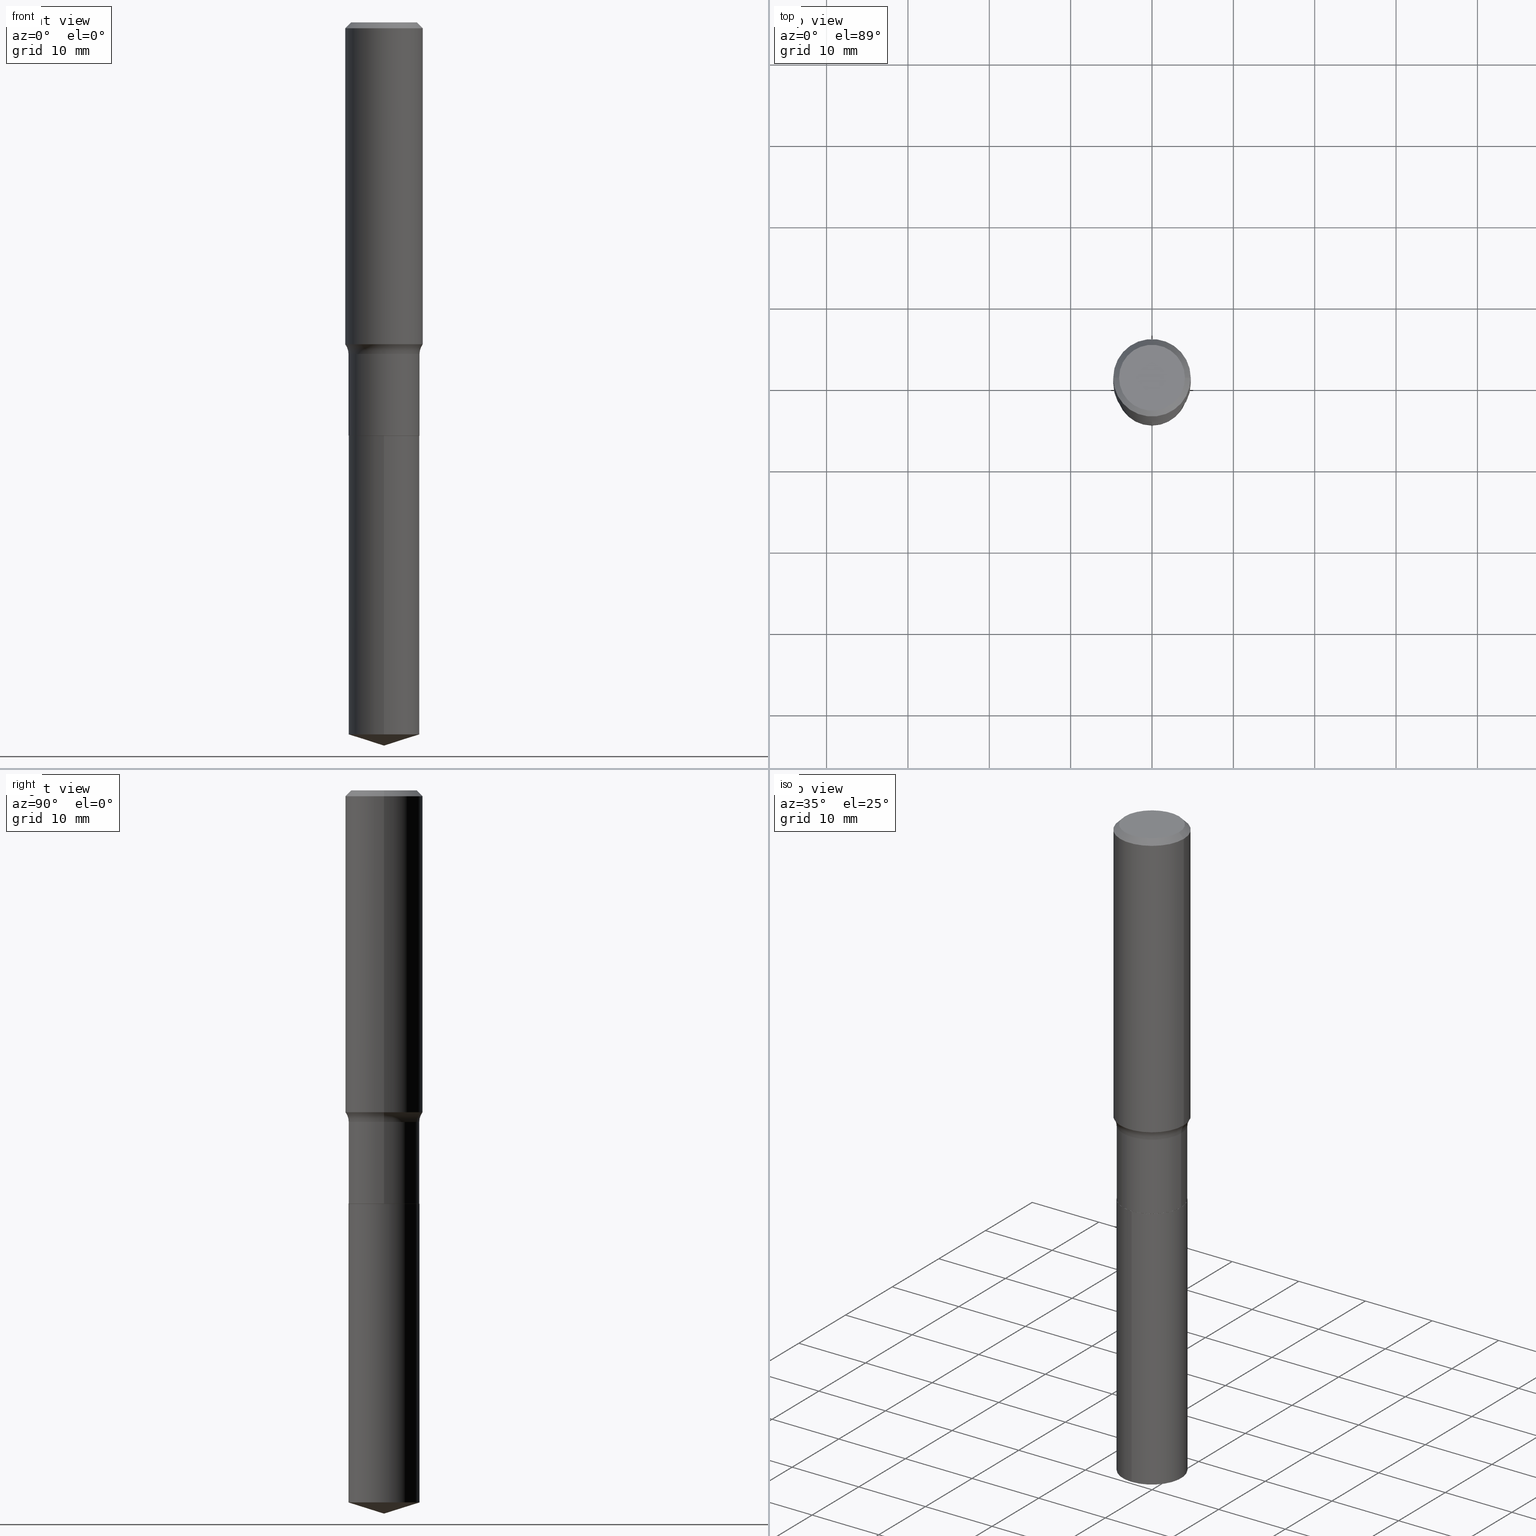
[diagram: canonical four-view strip — front | top / right | iso, engineering-drawing reading convention]
A machine part, canonical four-view strip (front | top / right | iso — engineering-drawing reading convention). The complete STEP part file that produces these views, byte-faithful:
ISO-10303-21;
HEADER;
FILE_DESCRIPTION (( 'STEP AP203' ),
    '1' );
FILE_NAME ('51352.STEP',
    '2024-04-19T12:50:57',
    ( '' ),
    ( '' ),
    'SwSTEP 2.0',
    'SolidWorks 2023',
    '' );
FILE_SCHEMA (( 'CONFIG_CONTROL_DESIGN' ));
ENDSEC;

DATA;
#1 = DIRECTION ( 'NONE',  ( 1.000000000000000000, -6.982962677686268288E-15, 0.000000000000000000 ) ) ;
#2 = AXIS2_PLACEMENT_3D ( 'NONE', #486, #218, #152 ) ;
#3 = LOCAL_TIME ( 8, 50, 57.00000000000000000, #386 ) ;
#4 = DIRECTION ( 'NONE',  ( 1.000000000000000000, -6.982962677686268288E-15, 0.000000000000000000 ) ) ;
#5 = EDGE_CURVE ( 'NONE', #373, #438, #266, .T. ) ;
#6 = VERTEX_POINT ( 'NONE', #184 ) ;
#7 = CARTESIAN_POINT ( 'NONE',  ( 0.1875000000000000555, -1.407503414721139514E-15, -0.02812500000000019498 ) ) ;
#8 = EDGE_CURVE ( 'NONE', #404, #19, #324, .T. ) ;
#9 = DIRECTION ( 'NONE',  ( -2.445371005331358683E-29, 3.491621395232234607E-15, 1.000000000000000000 ) ) ;
#10 = SECURITY_CLASSIFICATION ( '', '', #381 ) ;
#11 = EDGE_CURVE ( 'NONE', #125, #226, #289, .T. ) ;
#12 = CARTESIAN_POINT ( 'NONE',  ( 1.221422962771695622E-15, 0.1718999999999878681, -3.445800138191703610 ) ) ;
#13 = ORIENTED_EDGE ( 'NONE', *, *, #159, .T. ) ;
#14 = DIRECTION ( 'NONE',  ( 1.000000000000000000, -6.982962677686266711E-15, 4.876176775795935793E-29 ) ) ;
#15 = EDGE_LOOP ( 'NONE', ( #319, #32 ) ) ;
#16 = DIRECTION ( 'NONE',  ( -2.438088387897960049E-29, 3.491481338843145188E-15, 1.000000000000000000 ) ) ;
#17 = CIRCLE ( 'NONE', #132, 0.07800000000000002764 ) ;
#18 = AXIS2_PLACEMENT_3D ( 'NONE', #94, #238, #393 ) ;
#19 = VERTEX_POINT ( 'NONE', #367 ) ;
#20 = DIRECTION ( 'NONE',  ( 1.000000000000000000, -6.982962677686265133E-15, 0.000000000000000000 ) ) ;
#21 = PRODUCT_DEFINITION ( 'UNKNOWN', '', #371, #452 ) ;
#22 = ORIENTED_EDGE ( 'NONE', *, *, #185, .F. ) ;
#23 = PLANE ( 'NONE',  #38 ) ;
#24 = MANIFOLD_SOLID_BREP ( 'Body-Move/Copy2[2]', #276 ) ;
#25 = EDGE_LOOP ( 'NONE', ( #57, #435, #475 ) ) ;
#26 = EDGE_CURVE ( 'NONE', #317, #402, #83, .T. ) ;
#27 = CARTESIAN_POINT ( 'NONE',  ( 0.000000000000000000, 0.000000000000000000, 0.000000000000000000 ) ) ;
#28 = CIRCLE ( 'NONE', #37, 0.1713999999999999690 ) ;
#29 = EDGE_LOOP ( 'NONE', ( #140, #209, #326, #86 ) ) ;
#30 = CC_DESIGN_APPROVAL ( #141, ( #10 ) ) ;
#31 = DIRECTION ( 'NONE',  ( 0.000000000000000000, 0.000000000000000000, 1.000000000000000000 ) ) ;
#32 = ORIENTED_EDGE ( 'NONE', *, *, #364, .F. ) ;
#33 = DIRECTION ( 'NONE',  ( 2.438088387897960049E-29, -3.491481338843145188E-15, -1.000000000000000000 ) ) ;
#34 = CARTESIAN_POINT ( 'NONE',  ( 0.1875000000000001110, -1.309305502066175797E-15, 9.142831454617385217E-30 ) ) ;
#35 = DIRECTION ( 'NONE',  ( -2.445468806185136877E-29, 3.491481338843145188E-15, 1.000000000000000000 ) ) ;
#36 = ORIENTED_EDGE ( 'NONE', *, *, #213, .F. ) ;
#37 = AXIS2_PLACEMENT_3D ( 'NONE', #163, #416, #304 ) ;
#38 = AXIS2_PLACEMENT_3D ( 'NONE', #254, #33, #448 ) ;
#39 = DATE_AND_TIME ( #377, #471 ) ;
#40 = DIRECTION ( 'NONE',  ( 1.000000000000000000, -6.982962677686267499E-15, 4.876227444496879000E-29 ) ) ;
#41 = FACE_OUTER_BOUND ( 'NONE', #135, .T. ) ;
#42 = PERSON_AND_ORGANIZATION ( #166, #252 ) ;
#43 = DIRECTION ( 'NONE',  ( 1.000000000000000000, -6.982962677686265922E-15, 0.000000000000000000 ) ) ;
#44 = CIRCLE ( 'NONE', #179, 0.1718999999999999695 ) ;
#45 = ORIENTED_EDGE ( 'NONE', *, *, #332, .T. ) ;
#46 = CALENDAR_DATE ( 2024, 19, 4 ) ;
#47 =( GEOMETRIC_REPRESENTATION_CONTEXT ( 3 ) GLOBAL_UNCERTAINTY_ASSIGNED_CONTEXT ( ( #312 ) ) GLOBAL_UNIT_ASSIGNED_CONTEXT ( ( #483, #403, #60 ) ) REPRESENTATION_CONTEXT ( 'NONE', 'WORKASPACE' ) );
#48 = CARTESIAN_POINT ( 'NONE',  ( 1.221422962771660912E-15, 0.1718999999999930028, -2.000000000000000444 ) ) ;
#49 = EDGE_LOOP ( 'NONE', ( #59, #45, #369, #484 ) ) ;
#50 = CYLINDRICAL_SURFACE ( 'NONE', #134, 0.1718999999999999695 ) ;
#51 = MANIFOLD_SOLID_BREP ( 'Body-Move/Copy2[1]', #258 ) ;
#52 = CC_DESIGN_PERSON_AND_ORGANIZATION_ASSIGNMENT ( #42, #488, ( #371 ) ) ;
#53 = CIRCLE ( 'NONE', #327, 0.1718999999999999695 ) ;
#54 = CARTESIAN_POINT ( 'NONE',  ( 8.559193152467037530E-29, -1.222011465775646424E-14, -3.500000000000000000 ) ) ;
#55 = CIRCLE ( 'NONE', #259, 0.1718999999999999695 ) ;
#56 = DIRECTION ( 'NONE',  ( -2.445468806185136597E-29, 3.491481338843145583E-15, 1.000000000000000000 ) ) ;
#57 = ORIENTED_EDGE ( 'NONE', *, *, #398, .F. ) ;
#58 = CARTESIAN_POINT ( 'NONE',  ( -0.1718999999999999417, 1.221422962771611806E-15, -8.455649420148180377E-30 ) ) ;
#59 = ORIENTED_EDGE ( 'NONE', *, *, #415, .T. ) ;
#60 =( NAMED_UNIT ( * ) SI_UNIT ( $, .STERADIAN. ) SOLID_ANGLE_UNIT ( ) );
#61 = ADVANCED_FACE ( 'NONE', ( #255 ), #111, .F. ) ;
#62 = VECTOR ( 'NONE', #73, 39.37007874015748143 ) ;
#63 = ORIENTED_EDGE ( 'NONE', *, *, #11, .T. ) ;
#64 = ADVANCED_FACE ( 'NONE', ( #253 ), #235, .T. ) ;
#65 = ORIENTED_EDGE ( 'NONE', *, *, #462, .T. ) ;
#66 = CARTESIAN_POINT ( 'NONE',  ( 3.809551306275204271E-29, -5.439029629649850300E-15, -1.557799999999999407 ) ) ;
#67 = DIRECTION ( 'NONE',  ( 1.000000000000000000, -6.982962677686265922E-15, 0.000000000000000000 ) ) ;
#68 = CARTESIAN_POINT ( 'NONE',  ( 3.923999246404669862E-29, -5.602430956307710923E-15, -1.604599999999999804 ) ) ;
#69 = ADVANCED_FACE ( 'NONE', ( #186 ), #333, .T. ) ;
#70 = DIRECTION ( 'NONE',  ( -2.445468806185136597E-29, 3.491481338843145583E-15, 1.000000000000000000 ) ) ;
#71 = CARTESIAN_POINT ( 'NONE',  ( 4.890937612370272633E-29, -6.982962677686290376E-15, -1.999999999999999778 ) ) ;
#72 = AXIS2_PLACEMENT_3D ( 'NONE', #436, #351, #14 ) ;
#73 = DIRECTION ( 'NONE',  ( -0.7071067811865457964, 2.468850131082238917E-15, -0.7071067811865492381 ) ) ;
#74 = ORIENTED_EDGE ( 'NONE', *, *, #8, .F. ) ;
#75 = APPROVAL_DATE_TIME ( #233, #251 ) ;
#76 = DIMENSIONAL_EXPONENTS ( 1.000000000000000000, 0.000000000000000000, 0.000000000000000000, 0.000000000000000000, 0.000000000000000000, 0.000000000000000000, 0.000000000000000000 ) ;
#77 = EDGE_CURVE ( 'NONE', #200, #281, #290, .T. ) ;
#78 = DIRECTION ( 'NONE',  ( -2.445468806185136597E-29, 3.491481338843145583E-15, 1.000000000000000000 ) ) ;
#79 = ORIENTED_EDGE ( 'NONE', *, *, #213, .T. ) ;
#80 = ADVANCED_FACE ( 'NONE', ( #117 ), #463, .T. ) ;
#81 = DIRECTION ( 'NONE',  ( 1.000000000000000000, -6.982962677686265133E-15, 0.000000000000000000 ) ) ;
#82 = AXIS2_PLACEMENT_3D ( 'NONE', #139, #70, #67 ) ;
#83 = CIRCLE ( 'NONE', #441, 0.1718999999999999695 ) ;
#84 = AXIS2_PLACEMENT_3D ( 'NONE', #392, #56, #279 ) ;
#85 = CARTESIAN_POINT ( 'NONE',  ( 0.2498999999999999000, -7.347473329461508210E-15, -1.604599999999999804 ) ) ;
#86 = ORIENTED_EDGE ( 'NONE', *, *, #11, .F. ) ;
#87 = DATE_TIME_ROLE ( 'classification_date' ) ;
#88 = CARTESIAN_POINT ( 'NONE',  ( 0.1718999999999999417, -1.200371284294268847E-15, 8.382147877593211677E-30 ) ) ;
#89 = VECTOR ( 'NONE', #329, 39.37007874015748143 ) ;
#90 = EDGE_LOOP ( 'NONE', ( #127, #150 ) ) ;
#91 = AXIS2_PLACEMENT_3D ( 'NONE', #138, #285, #288 ) ;
#92 = PRODUCT_DEFINITION_SHAPE ( 'NONE', 'NONE',  #21 ) ;
#93 = CARTESIAN_POINT ( 'NONE',  ( 4.890937612370272633E-29, -6.982962677686290376E-15, -1.999999999999999778 ) ) ;
#94 = CARTESIAN_POINT ( 'NONE',  ( 3.923999246404669862E-29, -5.602430956307710923E-15, -1.604599999999999804 ) ) ;
#95 = EDGE_CURVE ( 'NONE', #114, #226, #397, .T. ) ;
#96 = CARTESIAN_POINT ( 'NONE',  ( 0.1713999999999999690, -8.179842480641715822E-15, -1.999999999999999778 ) ) ;
#97 = DIRECTION ( 'NONE',  ( -2.445468806185136877E-29, 3.491481338843145188E-15, 1.000000000000000000 ) ) ;
#98 = CIRCLE ( 'NONE', #208, 0.07800000000000002764 ) ;
#99 = ORIENTED_EDGE ( 'NONE', *, *, #195, .T. ) ;
#100 = ORIENTED_EDGE ( 'NONE', *, *, #419, .F. ) ;
#101 = ADVANCED_FACE ( 'NONE', ( #198 ), #105, .T. ) ;
#102 = DIRECTION ( 'NONE',  ( -2.445468806185136597E-29, 3.491481338843145583E-15, 1.000000000000000000 ) ) ;
#103 = ORIENTED_EDGE ( 'NONE', *, *, #5, .T. ) ;
#104 = PERSON_AND_ORGANIZATION ( #166, #252 ) ;
#105 = CONICAL_SURFACE ( 'NONE', #429, 0.1713999999999999690, 0.7853981633975507526 ) ;
#106 = CC_DESIGN_APPROVAL ( #468, ( #21 ) ) ;
#107 = ORIENTED_EDGE ( 'NONE', *, *, #8, .T. ) ;
#108 = FACE_OUTER_BOUND ( 'NONE', #202, .T. ) ;
#109 = ORIENTED_EDGE ( 'NONE', *, *, #228, .T. ) ;
#110 = DIRECTION ( 'NONE',  ( -2.445468806185136597E-29, 3.491481338843145583E-15, 1.000000000000000000 ) ) ;
#111 = PLANE ( 'NONE',  #143 ) ;
#112 = DIRECTION ( 'NONE',  ( 1.000000000000000000, -6.982962677686265133E-15, 0.000000000000000000 ) ) ;
#113 = AXIS2_PLACEMENT_3D ( 'NONE', #314, #455, #418 ) ;
#114 = VERTEX_POINT ( 'NONE', #395 ) ;
#115 = APPROVAL_ROLE ( '' ) ;
#116 = CARTESIAN_POINT ( 'NONE',  ( 0.1875000000000002498, -6.748335131716026097E-15, -1.557799999999999407 ) ) ;
#117 = FACE_OUTER_BOUND ( 'NONE', #461, .T. ) ;
#118 = EDGE_CURVE ( 'NONE', #402, #317, #44, .T. ) ;
#119 = APPROVAL_STATUS ( 'not_yet_approved' ) ;
#120 = CARTESIAN_POINT ( 'NONE',  ( -7.955031918821655674E-47, 1.135767727816384611E-32, 3.252968060235159768E-18 ) ) ;
#121 = SHAPE_DEFINITION_REPRESENTATION ( #92, #188 ) ;
#122 = CONICAL_SURFACE ( 'NONE', #190, 0.1713999999999999690, 0.7853981633975507526 ) ;
#123 = CONICAL_SURFACE ( 'NONE', #91, 0.1875000000000000555, 0.7853981633974458365 ) ;
#124 = APPROVAL_STATUS ( 'not_yet_approved' ) ;
#125 = VERTEX_POINT ( 'NONE', #116 ) ;
#126 = CYLINDRICAL_SURFACE ( 'NONE', #113, 0.1718999999999999417 ) ;
#127 = ORIENTED_EDGE ( 'NONE', *, *, #322, .T. ) ;
#128 = AXIS2_PLACEMENT_3D ( 'NONE', #66, #102, #20 ) ;
#129 = APPLICATION_CONTEXT ( 'configuration controlled 3d designs of mechanical parts and assemblies' ) ;
#130 = FACE_OUTER_BOUND ( 'NONE', #15, .T. ) ;
#131 = ORIENTED_EDGE ( 'NONE', *, *, #410, .F. ) ;
#132 = AXIS2_PLACEMENT_3D ( 'NONE', #85, #387, #1 ) ;
#133 = FACE_OUTER_BOUND ( 'NONE', #286, .T. ) ;
#134 = AXIS2_PLACEMENT_3D ( 'NONE', #318, #470, #283 ) ;
#135 = EDGE_LOOP ( 'NONE', ( #355, #107, #169, #469 ) ) ;
#136 = CARTESIAN_POINT ( 'NONE',  ( -0.1593749999999999889, 1.162008633083729827E-15, 3.252968060227205293E-18 ) ) ;
#137 = ORIENTED_EDGE ( 'NONE', *, *, #287, .T. ) ;
#138 = CARTESIAN_POINT ( 'NONE',  ( 6.877881017395745374E-31, -9.819791265496414867E-17, -0.02812500000000019498 ) ) ;
#139 = CARTESIAN_POINT ( 'NONE',  ( 6.877881017395745374E-31, -9.819791265496414867E-17, -0.02812500000000019498 ) ) ;
#140 = ORIENTED_EDGE ( 'NONE', *, *, #476, .T. ) ;
#141 = APPROVAL ( #124, 'UNSPECIFIED' ) ;
#142 = LINE ( 'NONE', #413, #362 ) ;
#143 = AXIS2_PLACEMENT_3D ( 'NONE', #71, #440, #445 ) ;
#144 = VECTOR ( 'NONE', #97, 39.37007874015748143 ) ;
#145 = LOCAL_TIME ( 8, 50, 57.00000000000000000, #309 ) ;
#146 = DIRECTION ( 'NONE',  ( -2.445371005331358683E-29, 3.491621395232234607E-15, 1.000000000000000000 ) ) ;
#147 = DIRECTION ( 'NONE',  ( -6.982962677686266711E-15, -1.000000000000000000, 3.178415350394722068E-15 ) ) ;
#148 = VERTEX_POINT ( 'NONE', #214 ) ;
#149 = DIRECTION ( 'NONE',  ( 1.000000000000000000, 0.000000000000000000, 0.000000000000000000 ) ) ;
#150 = ORIENTED_EDGE ( 'NONE', *, *, #410, .T. ) ;
#151 = AXIS2_PLACEMENT_3D ( 'NONE', #160, #273, #268 ) ;
#152 = DIRECTION ( 'NONE',  ( -6.982962677686266711E-15, -1.000000000000000000, 3.178415350394722068E-15 ) ) ;
#153 = PRODUCT_RELATED_PRODUCT_CATEGORY ( 'detail', '', ( #349 ) ) ;
#154 = COORDINATED_UNIVERSAL_TIME_OFFSET ( 5, 0, .BEHIND. ) ;
#155 = CARTESIAN_POINT ( 'NONE',  ( 0.1875000000000000555, -1.384541287237126871E-15, -0.02812500000000019498 ) ) ;
#156 = DATE_AND_TIME ( #46, #199 ) ;
#157 = FACE_OUTER_BOUND ( 'NONE', #293, .T. ) ;
#158 = DATE_AND_TIME ( #192, #382 ) ;
#159 = EDGE_CURVE ( 'NONE', #226, #114, #297, .T. ) ;
#160 = CARTESIAN_POINT ( 'NONE',  ( 3.923999246404669862E-29, -5.602430956307710923E-15, -1.604599999999999804 ) ) ;
#161 = AXIS2_PLACEMENT_3D ( 'NONE', #489, #193, #491 ) ;
#162 = CARTESIAN_POINT ( 'NONE',  ( 8.558798518659754270E-29, -1.222067488331282034E-14, -3.500000000000000000 ) ) ;
#163 = CARTESIAN_POINT ( 'NONE',  ( 4.890937612370272633E-29, -6.982962677686290376E-15, -1.999999999999999778 ) ) ;
#164 = EDGE_CURVE ( 'NONE', #373, #226, #221, .T. ) ;
#165 = LINE ( 'NONE', #54, #421 ) ;
#166 = PERSON ( 'UNSPECIFIED', 'UNSPECIFIED', 'UNSPECIFIED', ('UNSPECIFIED'), ('UNSPECIFIED'), ('UNSPECIFIED') ) ;
#167 = CC_DESIGN_PERSON_AND_ORGANIZATION_ASSIGNMENT ( #385, #492, ( #371 ) ) ;
#168 = AXIS2_PLACEMENT_3D ( 'NONE', #372, #31, #149 ) ;
#169 = ORIENTED_EDGE ( 'NONE', *, *, #415, .F. ) ;
#170 = PLANE ( 'NONE',  #346 ) ;
#171 = ORIENTED_EDGE ( 'NONE', *, *, #95, .F. ) ;
#172 = CIRCLE ( 'NONE', #212, 0.1718999999999999695 ) ;
#173 = CARTESIAN_POINT ( 'NONE',  ( 4.890937612370272633E-29, -6.982962677686290376E-15, -1.999999999999999778 ) ) ;
#174 = ORIENTED_EDGE ( 'NONE', *, *, #311, .F. ) ;
#175 = ORIENTED_EDGE ( 'NONE', *, *, #176, .T. ) ;
#176 = EDGE_CURVE ( 'NONE', #125, #200, #17, .T. ) ;
#177 = APPLICATION_PROTOCOL_DEFINITION ( 'international standard', 'config_control_design', 1994, #129 ) ;
#178 = EDGE_LOOP ( 'NONE', ( #358, #360, #391, #131 ) ) ;
#179 = AXIS2_PLACEMENT_3D ( 'NONE', #444, #406, #453 ) ;
#180 = VECTOR ( 'NONE', #9, 39.37007874015748143 ) ;
#181 = DIRECTION ( 'NONE',  ( -6.982962677686266711E-15, -1.000000000000000000, 3.178415350394722068E-15 ) ) ;
#182 = MECHANICAL_CONTEXT ( 'NONE', #376, 'mechanical' ) ;
#183 = EDGE_CURVE ( 'NONE', #402, #473, #423, .T. ) ;
#184 = CARTESIAN_POINT ( 'NONE',  ( -1.200371284294219937E-15, -0.1719000000000069361, -1.999999999999999112 ) ) ;
#185 = EDGE_CURVE ( 'NONE', #438, #373, #320, .T. ) ;
#186 = FACE_OUTER_BOUND ( 'NONE', #417, .T. ) ;
#187 = APPROVAL_DATE_TIME ( #39, #468 ) ;
#188 = ADVANCED_BREP_SHAPE_REPRESENTATION ( '51352', ( #51, #24, #168 ), #47 ) ;
#189 = FACE_OUTER_BOUND ( 'NONE', #25, .T. ) ;
#190 = AXIS2_PLACEMENT_3D ( 'NONE', #460, #426, #81 ) ;
#191 = CIRCLE ( 'NONE', #292, 0.1875000000000002220 ) ;
#192 = CALENDAR_DATE ( 2024, 19, 4 ) ;
#193 = DIRECTION ( 'NONE',  ( -2.445371005331358683E-29, 3.491621395232234607E-15, 1.000000000000000000 ) ) ;
#194 = CARTESIAN_POINT ( 'NONE',  ( 6.877881017395745374E-31, -9.819791265496414867E-17, -0.02812500000000019498 ) ) ;
#195 = EDGE_CURVE ( 'NONE', #365, #148, #345, .T. ) ;
#196 = CARTESIAN_POINT ( 'NONE',  ( 0.000000000000000000, 0.000000000000000000, 0.000000000000000000 ) ) ;
#197 = DIRECTION ( 'NONE',  ( -2.445371005331358683E-29, 3.491621395232234607E-15, 1.000000000000000000 ) ) ;
#198 = FACE_OUTER_BOUND ( 'NONE', #449, .T. ) ;
#199 = LOCAL_TIME ( 8, 50, 57.00000000000000000, #458 ) ;
#200 = VERTEX_POINT ( 'NONE', #265 ) ;
#201 = CARTESIAN_POINT ( 'NONE',  ( 4.889714877967179832E-29, -6.981216937016868873E-15, -1.999499999999999833 ) ) ;
#202 = EDGE_LOOP ( 'NONE', ( #211, #103 ) ) ;
#203 = LINE ( 'NONE', #350, #180 ) ;
#204 = ADVANCED_FACE ( 'NONE', ( #310 ), #126, .T. ) ;
#205 = CARTESIAN_POINT ( 'NONE',  ( 4.890937612370272633E-29, -6.982962677686290376E-15, -1.999999999999999778 ) ) ;
#206 = CYLINDRICAL_SURFACE ( 'NONE', #72, 0.1875000000000001110 ) ;
#207 = VECTOR ( 'NONE', #197, 39.37007874015748143 ) ;
#208 = AXIS2_PLACEMENT_3D ( 'NONE', #210, #359, #243 ) ;
#209 = ORIENTED_EDGE ( 'NONE', *, *, #430, .T. ) ;
#210 = CARTESIAN_POINT ( 'NONE',  ( -0.2498999999999999000, -3.826784659643221269E-15, -1.604599999999999804 ) ) ;
#211 = ORIENTED_EDGE ( 'NONE', *, *, #185, .T. ) ;
#212 = AXIS2_PLACEMENT_3D ( 'NONE', #93, #432, #466 ) ;
#213 = EDGE_CURVE ( 'NONE', #19, #148, #53, .T. ) ;
#214 = CARTESIAN_POINT ( 'NONE',  ( 0.1718999999999999695, -8.181588221311138114E-15, -1.999499999999999833 ) ) ;
#215 = ORIENTED_EDGE ( 'NONE', *, *, #164, .T. ) ;
#216 = PERSON_AND_ORGANIZATION_ROLE ( 'design_owner' ) ;
#217 = CC_DESIGN_DATE_AND_TIME_ASSIGNMENT ( #156, #87, ( #10 ) ) ;
#218 = DIRECTION ( 'NONE',  ( -2.445371005331358683E-29, 3.491621395232234607E-15, 1.000000000000000000 ) ) ;
#219 = DIRECTION ( 'NONE',  ( -2.445468806185136597E-29, 3.491481338843145583E-15, 1.000000000000000000 ) ) ;
#220 = AXIS2_PLACEMENT_3D ( 'NONE', #240, #278, #428 ) ;
#221 = LINE ( 'NONE', #155, #451 ) ;
#222 = DIRECTION ( 'NONE',  ( -2.445468806185136597E-29, 3.491481338843145583E-15, 1.000000000000000000 ) ) ;
#223 = DIRECTION ( 'NONE',  ( -2.445468806185136597E-29, 3.491481338843145583E-15, 1.000000000000000000 ) ) ;
#224 = DIRECTION ( 'NONE',  ( 1.000000000000000000, -6.982962677686267499E-15, 4.876227444496879000E-29 ) ) ;
#225 = CARTESIAN_POINT ( 'NONE',  ( -0.1718999999999999417, -5.070400983890677303E-15, -1.604599999999999804 ) ) ;
#226 = VERTEX_POINT ( 'NONE', #7 ) ;
#227 = DIRECTION ( 'NONE',  ( 1.000000000000000000, -6.982962677686266711E-15, 4.876176775795935793E-29 ) ) ;
#228 = EDGE_CURVE ( 'NONE', #281, #200, #335, .T. ) ;
#229 = CC_DESIGN_APPROVAL ( #251, ( #371 ) ) ;
#230 = DIRECTION ( 'NONE',  ( 0.7071067811866199593, -2.468850131083015945E-15, 0.7071067811864750752 ) ) ;
#231 = APPROVAL_STATUS ( 'not_yet_approved' ) ;
#232 = VERTEX_POINT ( 'NONE', #162 ) ;
#233 = DATE_AND_TIME ( #343, #3 ) ;
#234 = DIRECTION ( 'NONE',  ( 0.7071067811865457964, -7.319954787623249734E-15, -0.7071067811865492381 ) ) ;
#235 = CONICAL_SURFACE ( 'NONE', #434, 124.8659371009145787, 1.265363707695890572 ) ;
#236 = ORIENTED_EDGE ( 'NONE', *, *, #322, .F. ) ;
#237 = CC_DESIGN_DATE_AND_TIME_ASSIGNMENT ( #158, #485, ( #21 ) ) ;
#238 = DIRECTION ( 'NONE',  ( -2.445468806185136597E-29, 3.491481338843145583E-15, 1.000000000000000000 ) ) ;
#239 = DIRECTION ( 'NONE',  ( 1.000000000000000000, -6.982962677686265133E-15, 0.000000000000000000 ) ) ;
#240 = CARTESIAN_POINT ( 'NONE',  ( 3.923999246404669862E-29, -5.602430956307710923E-15, -1.604599999999999804 ) ) ;
#241 = CC_DESIGN_PERSON_AND_ORGANIZATION_ASSIGNMENT ( #104, #216, ( #349 ) ) ;
#242 = AXIS2_PLACEMENT_3D ( 'NONE', #196, #340, #227 ) ;
#243 = DIRECTION ( 'NONE',  ( -1.000000000000000000, 7.105427357601001859E-15, 0.000000000000000000 ) ) ;
#244 = ORIENTED_EDGE ( 'NONE', *, *, #364, .T. ) ;
#245 = ORIENTED_EDGE ( 'NONE', *, *, #183, .T. ) ;
#246 = ADVANCED_FACE ( 'NONE', ( #41 ), #122, .T. ) ;
#247 = LENGTH_MEASURE_WITH_UNIT ( LENGTH_MEASURE( 0.02539999999999999897 ), #368 );
#248 = ORIENTED_EDGE ( 'NONE', *, *, #26, .F. ) ;
#249 = AXIS2_PLACEMENT_3D ( 'NONE', #194, #341, #43 ) ;
#250 = CARTESIAN_POINT ( 'NONE',  ( 4.889714877967179832E-29, -6.981216937016868873E-15, -1.999499999999999833 ) ) ;
#251 = APPROVAL ( #119, 'UNSPECIFIED' ) ;
#252 = ORGANIZATION ( 'UNSPECIFIED', 'UNSPECIFIED', '' ) ;
#253 = FACE_OUTER_BOUND ( 'NONE', #347, .T. ) ;
#254 = CARTESIAN_POINT ( 'NONE',  ( -3.977515959410827837E-47, 5.678838639081923055E-33, 1.626484030117579884E-18 ) ) ;
#255 = FACE_OUTER_BOUND ( 'NONE', #90, .T. ) ;
#256 = CARTESIAN_POINT ( 'NONE',  ( -7.955031918821655674E-47, 1.135767727816384611E-32, 3.252968060235159768E-18 ) ) ;
#257 = CARTESIAN_POINT ( 'NONE',  ( 1.221422962771696214E-15, 0.1718999999999930028, -2.000000000000000444 ) ) ;
#258 = CLOSED_SHELL ( 'NONE', ( #69, #64, #300, #378, #61 ) ) ;
#259 = AXIS2_PLACEMENT_3D ( 'NONE', #467, #408, #147 ) ;
#260 = ORIENTED_EDGE ( 'NONE', *, *, #462, .F. ) ;
#261 = APPROVAL_ROLE ( '' ) ;
#262 = CYLINDRICAL_SURFACE ( 'NONE', #242, 0.1875000000000001110 ) ;
#263 = ORIENTED_EDGE ( 'NONE', *, *, #5, .F. ) ;
#264 = ADVANCED_FACE ( 'NONE', ( #306 ), #262, .T. ) ;
#265 = CARTESIAN_POINT ( 'NONE',  ( 0.1718999999999999417, -6.802802240601980164E-15, -1.604599999999999804 ) ) ;
#266 = CIRCLE ( 'NONE', #361, 0.1593749999999999889 ) ;
#267 = DATE_AND_TIME ( #331, #145 ) ;
#268 = DIRECTION ( 'NONE',  ( 1.000000000000000000, -6.982962677686269077E-15, 0.000000000000000000 ) ) ;
#269 = DIRECTION ( 'NONE',  ( -1.000000000000000000, 6.982962677686265922E-15, 0.000000000000000000 ) ) ;
#270 = EDGE_CURVE ( 'NONE', #365, #404, #28, .T. ) ;
#271 = ORIENTED_EDGE ( 'NONE', *, *, #95, .T. ) ;
#272 = PERSON_AND_ORGANIZATION ( #166, #252 ) ;
#273 = DIRECTION ( 'NONE',  ( -2.445468806185136597E-29, 3.491481338843145583E-15, 1.000000000000000000 ) ) ;
#274 = ORIENTED_EDGE ( 'NONE', *, *, #384, .F. ) ;
#275 = CARTESIAN_POINT ( 'NONE',  ( -1.200371284294184241E-15, -0.1719000000000119599, -3.445800138191702278 ) ) ;
#276 = CLOSED_SHELL ( 'NONE', ( #246, #450, #264, #338, #204, #439, #307, #342, #80, #465, #356, #101 ) ) ;
#277 = AXIS2_PLACEMENT_3D ( 'NONE', #27, #223, #443 ) ;
#278 = DIRECTION ( 'NONE',  ( -2.445468806185136597E-29, 3.491481338843145583E-15, 1.000000000000000000 ) ) ;
#279 = DIRECTION ( 'NONE',  ( 1.000000000000000000, -6.982962677686265133E-15, 0.000000000000000000 ) ) ;
#280 = CARTESIAN_POINT ( 'NONE',  ( 8.558798518659754270E-29, -1.222067488331281876E-14, -3.500000000000000000 ) ) ;
#281 = VERTEX_POINT ( 'NONE', #225 ) ;
#282 = VECTOR ( 'NONE', #401, 39.37007874015748143 ) ;
#283 = DIRECTION ( 'NONE',  ( -6.982962677686266711E-15, -1.000000000000000000, 3.178415350394722068E-15 ) ) ;
#284 = ORIENTED_EDGE ( 'NONE', *, *, #344, .F. ) ;
#285 = DIRECTION ( 'NONE',  ( 2.445468806185136597E-29, -3.491481338843145583E-15, -1.000000000000000000 ) ) ;
#286 = EDGE_LOOP ( 'NONE', ( #260, #424, #109, #472 ) ) ;
#287 = EDGE_CURVE ( 'NONE', #148, #200, #379, .T. ) ;
#288 = DIRECTION ( 'NONE',  ( -1.000000000000000000, 6.982962677686265922E-15, 0.000000000000000000 ) ) ;
#289 = LINE ( 'NONE', #34, #89 ) ;
#290 = CIRCLE ( 'NONE', #352, 0.1718999999999999417 ) ;
#291 = FACE_OUTER_BOUND ( 'NONE', #427, .T. ) ;
#292 = AXIS2_PLACEMENT_3D ( 'NONE', #374, #110, #112 ) ;
#293 = EDGE_LOOP ( 'NONE', ( #284, #400, #175, #414 ) ) ;
#294 = CARTESIAN_POINT ( 'NONE',  ( -0.1875000000000000555, 1.211107589411211094E-15, -0.02812500000000019498 ) ) ;
#295 = VERTEX_POINT ( 'NONE', #383 ) ;
#296 = ORIENTED_EDGE ( 'NONE', *, *, #26, .T. ) ;
#297 = CIRCLE ( 'NONE', #82, 0.1875000000000000555 ) ;
#298 = CIRCLE ( 'NONE', #84, 0.1713999999999999690 ) ;
#299 = ORIENTED_EDGE ( 'NONE', *, *, #164, .F. ) ;
#300 = ADVANCED_FACE ( 'NONE', ( #189 ), #370, .T. ) ;
#301 = DIRECTION ( 'NONE',  ( -2.445468806185136597E-29, 3.491481338843145583E-15, 1.000000000000000000 ) ) ;
#302 = CC_DESIGN_PERSON_AND_ORGANIZATION_ASSIGNMENT ( #456, #389, ( #10 ) ) ;
#303 = APPROVAL_DATE_TIME ( #267, #141 ) ;
#304 = DIRECTION ( 'NONE',  ( 1.000000000000000000, -6.982962677686265133E-15, 0.000000000000000000 ) ) ;
#305 = PERSON_AND_ORGANIZATION ( #166, #252 ) ;
#306 = FACE_OUTER_BOUND ( 'NONE', #29, .T. ) ;
#307 = ADVANCED_FACE ( 'NONE', ( #157 ), #390, .F. ) ;
#308 = VECTOR ( 'NONE', #35, 39.37007874015748143 ) ;
#309 = COORDINATED_UNIVERSAL_TIME_OFFSET ( 5, 0, .BEHIND. ) ;
#310 = FACE_OUTER_BOUND ( 'NONE', #49, .T. ) ;
#311 = EDGE_CURVE ( 'NONE', #232, #317, #431, .T. ) ;
#312 = UNCERTAINTY_MEASURE_WITH_UNIT (LENGTH_MEASURE( 1.000000000000000082E-05 ), #483, 'distance_accuracy_value', 'NONE');
#313 = ORIENTED_EDGE ( 'NONE', *, *, #398, .T. ) ;
#314 = CARTESIAN_POINT ( 'NONE',  ( 0.000000000000000000, 0.000000000000000000, 0.000000000000000000 ) ) ;
#315 = APPROVAL_PERSON_ORGANIZATION ( #325, #468, #115 ) ;
#316 = CARTESIAN_POINT ( 'NONE',  ( -0.1713999999999999690, -5.762443201419367479E-15, -1.999999999999999778 ) ) ;
#317 = VERTEX_POINT ( 'NONE', #275 ) ;
#318 = CARTESIAN_POINT ( 'NONE',  ( 4.890937612370272633E-29, -6.982962677686290376E-15, -1.999999999999999778 ) ) ;
#319 = ORIENTED_EDGE ( 'NONE', *, *, #270, .F. ) ;
#320 = CIRCLE ( 'NONE', #478, 0.1593749999999999889 ) ;
#321 = DIRECTION ( 'NONE',  ( 1.000000000000000000, -6.982962677686265922E-15, 4.876176775795935793E-29 ) ) ;
#322 = EDGE_CURVE ( 'NONE', #6, #473, #172, .T. ) ;
#323 = EDGE_LOOP ( 'NONE', ( #459, #65, #63, #171 ) ) ;
#324 = LINE ( 'NONE', #375, #457 ) ;
#325 = PERSON_AND_ORGANIZATION ( #166, #252 ) ;
#326 = ORIENTED_EDGE ( 'NONE', *, *, #159, .F. ) ;
#327 = AXIS2_PLACEMENT_3D ( 'NONE', #201, #301, #4 ) ;
#328 = CIRCLE ( 'NONE', #336, 0.1718999999999999695 ) ;
#329 = DIRECTION ( 'NONE',  ( -2.445468806185136877E-29, 3.491481338843145188E-15, 1.000000000000000000 ) ) ;
#330 = DIRECTION ( 'NONE',  ( -0.7071067811866199593, 7.493145998870616062E-15, 0.7071067811864750752 ) ) ;
#331 = CALENDAR_DATE ( 2024, 19, 4 ) ;
#332 = EDGE_CURVE ( 'NONE', #19, #281, #433, .T. ) ;
#333 = CYLINDRICAL_SURFACE ( 'NONE', #2, 0.1718999999999999695 ) ;
#334 = PERSON_AND_ORGANIZATION ( #166, #252 ) ;
#335 = CIRCLE ( 'NONE', #151, 0.1718999999999999417 ) ;
#336 = AXIS2_PLACEMENT_3D ( 'NONE', #250, #405, #481 ) ;
#337 = CARTESIAN_POINT ( 'NONE',  ( 6.877881017395745374E-31, -9.819791265496414867E-17, -0.02812500000000019498 ) ) ;
#338 = ADVANCED_FACE ( 'NONE', ( #133 ), #480, .F. ) ;
#339 = COORDINATED_UNIVERSAL_TIME_OFFSET ( 5, 0, .BEHIND. ) ;
#340 = DIRECTION ( 'NONE',  ( -2.445468806185136597E-29, 3.491481338843145583E-15, 1.000000000000000000 ) ) ;
#341 = DIRECTION ( 'NONE',  ( -2.445468806185136597E-29, 3.491481338843145583E-15, 1.000000000000000000 ) ) ;
#342 = ADVANCED_FACE ( 'NONE', ( #399 ), #206, .T. ) ;
#343 = CALENDAR_DATE ( 2024, 19, 4 ) ;
#344 = EDGE_CURVE ( 'NONE', #295, #281, #98, .T. ) ;
#345 = LINE ( 'NONE', #348, #411 ) ;
#346 = AXIS2_PLACEMENT_3D ( 'NONE', #173, #16, #321 ) ;
#347 = EDGE_LOOP ( 'NONE', ( #174, #313, #248 ) ) ;
#348 = CARTESIAN_POINT ( 'NONE',  ( 0.1713999999999999690, -8.179842480641715822E-15, -1.999999999999999778 ) ) ;
#349 = PRODUCT ( '51352', '51352', '', ( #182 ) ) ;
#350 = CARTESIAN_POINT ( 'NONE',  ( -1.200371284294219937E-15, -0.1719000000000069361, -1.999999999999999112 ) ) ;
#351 = DIRECTION ( 'NONE',  ( -2.445468806185136597E-29, 3.491481338843145583E-15, 1.000000000000000000 ) ) ;
#352 = AXIS2_PLACEMENT_3D ( 'NONE', #68, #219, #454 ) ;
#353 = APPROVAL_PERSON_ORGANIZATION ( #334, #141, #261 ) ;
#354 = DIRECTION ( 'NONE',  ( 6.776566513254254982E-15, 0.9537169507482283759, 0.3007057995042682341 ) ) ;
#355 = ORIENTED_EDGE ( 'NONE', *, *, #270, .T. ) ;
#356 = ADVANCED_FACE ( 'NONE', ( #130 ), #170, .F. ) ;
#357 = CARTESIAN_POINT ( 'NONE',  ( 0.1593749999999999889, -1.238966577815982495E-15, 3.252968060243383104E-18 ) ) ;
#358 = ORIENTED_EDGE ( 'NONE', *, *, #183, .F. ) ;
#359 = DIRECTION ( 'NONE',  ( 7.105427357601001859E-15, 1.000000000000000000, -3.491481338843145583E-15 ) ) ;
#360 = ORIENTED_EDGE ( 'NONE', *, *, #118, .T. ) ;
#361 = AXIS2_PLACEMENT_3D ( 'NONE', #256, #222, #224 ) ;
#362 = VECTOR ( 'NONE', #363, 39.37007874015748143 ) ;
#363 = DIRECTION ( 'NONE',  ( -2.445468806185136877E-29, 3.491481338843145188E-15, 1.000000000000000000 ) ) ;
#364 = EDGE_CURVE ( 'NONE', #404, #365, #298, .T. ) ;
#365 = VERTEX_POINT ( 'NONE', #96 ) ;
#366 = LINE ( 'NONE', #294, #62 ) ;
#367 = CARTESIAN_POINT ( 'NONE',  ( -0.1718999999999999695, -5.070400983890676515E-15, -1.999499999999999833 ) ) ;
#368 =( LENGTH_UNIT ( ) NAMED_UNIT ( * ) SI_UNIT ( $, .METRE. ) );
#369 = ORIENTED_EDGE ( 'NONE', *, *, #77, .F. ) ;
#370 = CONICAL_SURFACE ( 'NONE', #161, 124.8659371009145787, 1.265363707695890572 ) ;
#371 = PRODUCT_DEFINITION_FORMATION_WITH_SPECIFIED_SOURCE ( 'ANY', '', #349, .NOT_KNOWN. ) ;
#372 = CARTESIAN_POINT ( 'NONE',  ( 0.000000000000000000, 0.000000000000000000, 0.000000000000000000 ) ) ;
#373 = VERTEX_POINT ( 'NONE', #357 ) ;
#374 = CARTESIAN_POINT ( 'NONE',  ( 3.809551306275204271E-29, -5.439029629649850300E-15, -1.557799999999999407 ) ) ;
#375 = CARTESIAN_POINT ( 'NONE',  ( -0.1713999999999999690, -5.765092428593478681E-15, -1.999999999999999778 ) ) ;
#376 = APPLICATION_CONTEXT ( 'configuration controlled 3d designs of mechanical parts and assemblies' ) ;
#377 = CALENDAR_DATE ( 2024, 19, 4 ) ;
#378 = ADVANCED_FACE ( 'NONE', ( #396 ), #50, .T. ) ;
#379 = LINE ( 'NONE', #88, #308 ) ;
#380 = ORIENTED_EDGE ( 'NONE', *, *, #419, .T. ) ;
#381 = SECURITY_CLASSIFICATION_LEVEL ( 'unclassified' ) ;
#382 = LOCAL_TIME ( 8, 50, 57.00000000000000000, #154 ) ;
#383 = CARTESIAN_POINT ( 'NONE',  ( -0.1875000000000002498, -4.106762000099660085E-15, -1.557799999999999407 ) ) ;
#384 = EDGE_CURVE ( 'NONE', #317, #6, #203, .T. ) ;
#385 = PERSON_AND_ORGANIZATION ( #166, #252 ) ;
#386 = COORDINATED_UNIVERSAL_TIME_OFFSET ( 5, 0, .BEHIND. ) ;
#387 = DIRECTION ( 'NONE',  ( -6.982962677686266711E-15, -1.000000000000000000, 3.491481338843145583E-15 ) ) ;
#388 = EDGE_LOOP ( 'NONE', ( #263, #215, #13, #100 ) ) ;
#389 = PERSON_AND_ORGANIZATION_ROLE ( 'classification_officer' ) ;
#390 = TOROIDAL_SURFACE ( 'NONE', #220, 0.2498999999999999000, 0.07799999999999999989 ) ;
#391 = ORIENTED_EDGE ( 'NONE', *, *, #384, .T. ) ;
#392 = CARTESIAN_POINT ( 'NONE',  ( 4.890937612370272633E-29, -6.982962677686290376E-15, -1.999999999999999778 ) ) ;
#393 = DIRECTION ( 'NONE',  ( 1.000000000000000000, -6.982962677686266711E-15, 4.883557194083112901E-29 ) ) ;
#394 = CC_DESIGN_PERSON_AND_ORGANIZATION_ASSIGNMENT ( #305, #490, ( #21 ) ) ;
#395 = CARTESIAN_POINT ( 'NONE',  ( -0.1875000000000000555, -1.436346141602218174E-15, -0.02812500000000019498 ) ) ;
#396 = FACE_OUTER_BOUND ( 'NONE', #178, .T. ) ;
#397 = CIRCLE ( 'NONE', #249, 0.1875000000000000555 ) ;
#398 = EDGE_CURVE ( 'NONE', #232, #402, #165, .T. ) ;
#399 = FACE_OUTER_BOUND ( 'NONE', #323, .T. ) ;
#400 = ORIENTED_EDGE ( 'NONE', *, *, #476, .F. ) ;
#401 = DIRECTION ( 'NONE',  ( -6.659769872151629722E-15, -0.9537169507482263775, 0.3007057995042748955 ) ) ;
#402 = VERTEX_POINT ( 'NONE', #12 ) ;
#403 =( NAMED_UNIT ( * ) PLANE_ANGLE_UNIT ( ) SI_UNIT ( $, .RADIAN. ) );
#404 = VERTEX_POINT ( 'NONE', #316 ) ;
#405 = DIRECTION ( 'NONE',  ( -2.445468806185136597E-29, 3.491481338843145583E-15, 1.000000000000000000 ) ) ;
#406 = DIRECTION ( 'NONE',  ( -2.445371005331358683E-29, 3.491621395232234607E-15, 1.000000000000000000 ) ) ;
#407 = DIRECTION ( 'NONE',  ( -2.445371005331358683E-29, 3.491621395232234607E-15, 1.000000000000000000 ) ) ;
#408 = DIRECTION ( 'NONE',  ( -2.445371005331358683E-29, 3.491621395232234607E-15, 1.000000000000000000 ) ) ;
#409 = CARTESIAN_POINT ( 'NONE',  ( -8.771545490842633633E-28, 1.252450144905769692E-13, 35.87007874015748143 ) ) ;
#410 = EDGE_CURVE ( 'NONE', #473, #6, #55, .T. ) ;
#411 = VECTOR ( 'NONE', #230, 39.37007874015748143 ) ;
#412 = CIRCLE ( 'NONE', #128, 0.1875000000000002220 ) ;
#413 = CARTESIAN_POINT ( 'NONE',  ( -0.1875000000000001110, 1.332267629550188637E-15, -9.223003294227953596E-30 ) ) ;
#414 = ORIENTED_EDGE ( 'NONE', *, *, #77, .T. ) ;
#415 = EDGE_CURVE ( 'NONE', #148, #19, #328, .T. ) ;
#416 = DIRECTION ( 'NONE',  ( -2.445468806185136597E-29, 3.491481338843145583E-15, 1.000000000000000000 ) ) ;
#417 = EDGE_LOOP ( 'NONE', ( #296, #245, #236, #274 ) ) ;
#418 = DIRECTION ( 'NONE',  ( 1.000000000000000000, -6.982962677686266711E-15, 4.876176775795936353E-29 ) ) ;
#419 = EDGE_CURVE ( 'NONE', #438, #114, #366, .T. ) ;
#420 = DIRECTION ( 'NONE',  ( 2.445468806185136597E-29, -3.491481338843145583E-15, -1.000000000000000000 ) ) ;
#421 = VECTOR ( 'NONE', #354, 39.37007874015748854 ) ;
#422 = CC_DESIGN_SECURITY_CLASSIFICATION ( #10, ( #371 ) ) ;
#423 = LINE ( 'NONE', #48, #207 ) ;
#424 = ORIENTED_EDGE ( 'NONE', *, *, #344, .T. ) ;
#425 = APPROVAL_ROLE ( '' ) ;
#426 = DIRECTION ( 'NONE',  ( -2.445468806185136597E-29, 3.491481338843145583E-15, 1.000000000000000000 ) ) ;
#427 = EDGE_LOOP ( 'NONE', ( #447, #79, #137, #437 ) ) ;
#428 = DIRECTION ( 'NONE',  ( 1.000000000000000000, -6.982962677686266711E-15, 4.883557194083112901E-29 ) ) ;
#429 = AXIS2_PLACEMENT_3D ( 'NONE', #205, #464, #239 ) ;
#430 = EDGE_CURVE ( 'NONE', #295, #114, #142, .T. ) ;
#431 = LINE ( 'NONE', #280, #282 ) ;
#432 = DIRECTION ( 'NONE',  ( -2.445371005331358683E-29, 3.491621395232234607E-15, 1.000000000000000000 ) ) ;
#433 = LINE ( 'NONE', #58, #144 ) ;
#434 = AXIS2_PLACEMENT_3D ( 'NONE', #409, #407, #482 ) ;
#435 = ORIENTED_EDGE ( 'NONE', *, *, #311, .T. ) ;
#436 = CARTESIAN_POINT ( 'NONE',  ( 0.000000000000000000, 0.000000000000000000, 0.000000000000000000 ) ) ;
#437 = ORIENTED_EDGE ( 'NONE', *, *, #228, .F. ) ;
#438 = VERTEX_POINT ( 'NONE', #136 ) ;
#439 = ADVANCED_FACE ( 'NONE', ( #291 ), #474, .T. ) ;
#440 = DIRECTION ( 'NONE',  ( 2.445371005331358123E-29, -3.491621395232234607E-15, -1.000000000000000000 ) ) ;
#441 = AXIS2_PLACEMENT_3D ( 'NONE', #479, #146, #181 ) ;
#442 = APPROVAL_PERSON_ORGANIZATION ( #272, #251, #425 ) ;
#443 = DIRECTION ( 'NONE',  ( 1.000000000000000000, -6.982962677686266711E-15, 4.876176775795936353E-29 ) ) ;
#444 = CARTESIAN_POINT ( 'NONE',  ( 8.426455349808333467E-29, -1.203114937342616331E-14, -3.445800138191702722 ) ) ;
#445 = DIRECTION ( 'NONE',  ( 6.982962677686265922E-15, 1.000000000000000000, -3.491621395232234607E-15 ) ) ;
#446 = FACE_OUTER_BOUND ( 'NONE', #388, .T. ) ;
#447 = ORIENTED_EDGE ( 'NONE', *, *, #332, .F. ) ;
#448 = DIRECTION ( 'NONE',  ( -1.000000000000000000, 6.982962677686265922E-15, -4.876176775795935793E-29 ) ) ;
#449 = EDGE_LOOP ( 'NONE', ( #74, #244, #99, #36 ) ) ;
#450 = ADVANCED_FACE ( 'NONE', ( #446 ), #123, .T. ) ;
#451 = VECTOR ( 'NONE', #234, 39.37007874015748143 ) ;
#452 = DESIGN_CONTEXT ( 'detailed design', #129, 'design' ) ;
#453 = DIRECTION ( 'NONE',  ( -6.982962677686266711E-15, -1.000000000000000000, 3.178415350394722068E-15 ) ) ;
#454 = DIRECTION ( 'NONE',  ( 1.000000000000000000, -6.982962677686269077E-15, 0.000000000000000000 ) ) ;
#455 = DIRECTION ( 'NONE',  ( -2.445468806185136597E-29, 3.491481338843145583E-15, 1.000000000000000000 ) ) ;
#456 = PERSON_AND_ORGANIZATION ( #166, #252 ) ;
#457 = VECTOR ( 'NONE', #330, 39.37007874015748143 ) ;
#458 = COORDINATED_UNIVERSAL_TIME_OFFSET ( 5, 0, .BEHIND. ) ;
#459 = ORIENTED_EDGE ( 'NONE', *, *, #430, .F. ) ;
#460 = CARTESIAN_POINT ( 'NONE',  ( 4.890937612370272633E-29, -6.982962677686290376E-15, -1.999999999999999778 ) ) ;
#461 = EDGE_LOOP ( 'NONE', ( #299, #22, #380, #271 ) ) ;
#462 = EDGE_CURVE ( 'NONE', #295, #125, #191, .T. ) ;
#463 = CONICAL_SURFACE ( 'NONE', #487, 0.1875000000000000555, 0.7853981633974458365 ) ;
#464 = DIRECTION ( 'NONE',  ( -2.445468806185136597E-29, 3.491481338843145583E-15, 1.000000000000000000 ) ) ;
#465 = ADVANCED_FACE ( 'NONE', ( #108 ), #23, .F. ) ;
#466 = DIRECTION ( 'NONE',  ( -6.982962677686266711E-15, -1.000000000000000000, 3.178415350394722068E-15 ) ) ;
#467 = CARTESIAN_POINT ( 'NONE',  ( 4.890937612370272633E-29, -6.982962677686290376E-15, -1.999999999999999778 ) ) ;
#468 = APPROVAL ( #231, 'UNSPECIFIED' ) ;
#469 = ORIENTED_EDGE ( 'NONE', *, *, #195, .F. ) ;
#470 = DIRECTION ( 'NONE',  ( -2.445371005331358683E-29, 3.491621395232234607E-15, 1.000000000000000000 ) ) ;
#471 = LOCAL_TIME ( 8, 50, 57.00000000000000000, #339 ) ;
#472 = ORIENTED_EDGE ( 'NONE', *, *, #176, .F. ) ;
#473 = VERTEX_POINT ( 'NONE', #257 ) ;
#474 = CYLINDRICAL_SURFACE ( 'NONE', #277, 0.1718999999999999417 ) ;
#475 = ORIENTED_EDGE ( 'NONE', *, *, #118, .F. ) ;
#476 = EDGE_CURVE ( 'NONE', #125, #295, #412, .T. ) ;
#477 = APPLICATION_PROTOCOL_DEFINITION ( 'international standard', 'config_control_design', 1994, #376 ) ;
#478 = AXIS2_PLACEMENT_3D ( 'NONE', #120, #78, #40 ) ;
#479 = CARTESIAN_POINT ( 'NONE',  ( 8.426455349808333467E-29, -1.203114937342616331E-14, -3.445800138191702722 ) ) ;
#480 = TOROIDAL_SURFACE ( 'NONE', #18, 0.2498999999999999000, 0.07799999999999999989 ) ;
#481 = DIRECTION ( 'NONE',  ( 1.000000000000000000, -6.982962677686268288E-15, 0.000000000000000000 ) ) ;
#482 = DIRECTION ( 'NONE',  ( -6.982962677686265133E-15, -1.000000000000000000, 3.500519750498718237E-15 ) ) ;
#483 =( CONVERSION_BASED_UNIT ( 'INCH', #247 ) LENGTH_UNIT ( ) NAMED_UNIT ( #76 ) );
#484 = ORIENTED_EDGE ( 'NONE', *, *, #287, .F. ) ;
#485 = DATE_TIME_ROLE ( 'creation_date' ) ;
#486 = CARTESIAN_POINT ( 'NONE',  ( 4.890937612370272633E-29, -6.982962677686290376E-15, -1.999999999999999778 ) ) ;
#487 = AXIS2_PLACEMENT_3D ( 'NONE', #337, #420, #269 ) ;
#488 = PERSON_AND_ORGANIZATION_ROLE ( 'creator' ) ;
#489 = CARTESIAN_POINT ( 'NONE',  ( -8.771545490842633633E-28, 1.252450144905769692E-13, 35.87007874015748143 ) ) ;
#490 = PERSON_AND_ORGANIZATION_ROLE ( 'creator' ) ;
#491 = DIRECTION ( 'NONE',  ( -6.982962677686265133E-15, -1.000000000000000000, 3.500519750498718237E-15 ) ) ;
#492 = PERSON_AND_ORGANIZATION_ROLE ( 'design_supplier' ) ;
ENDSEC;
END-ISO-10303-21;
